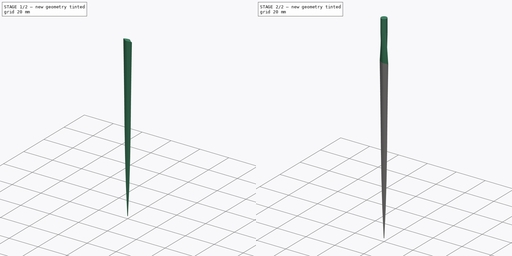
[diagram: build sequence overview — one tinted view per stage of 2, left to right]
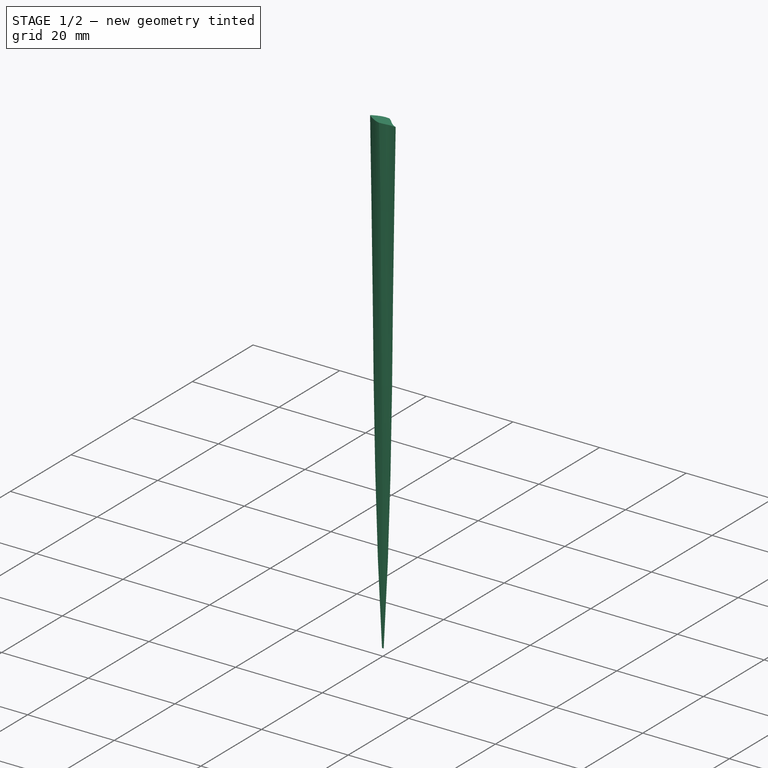
[diagram: stage 1 of 2 — iso view after this stage's code; geometry added in this stage tinted green]
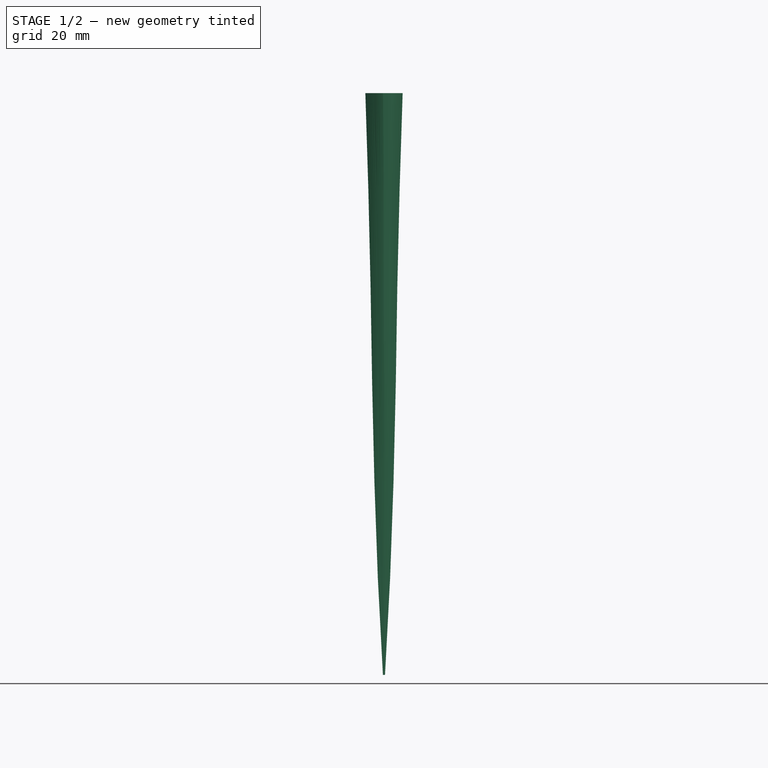
[diagram: stage 1 of 2 — front view after this stage's code; geometry added in this stage tinted green]
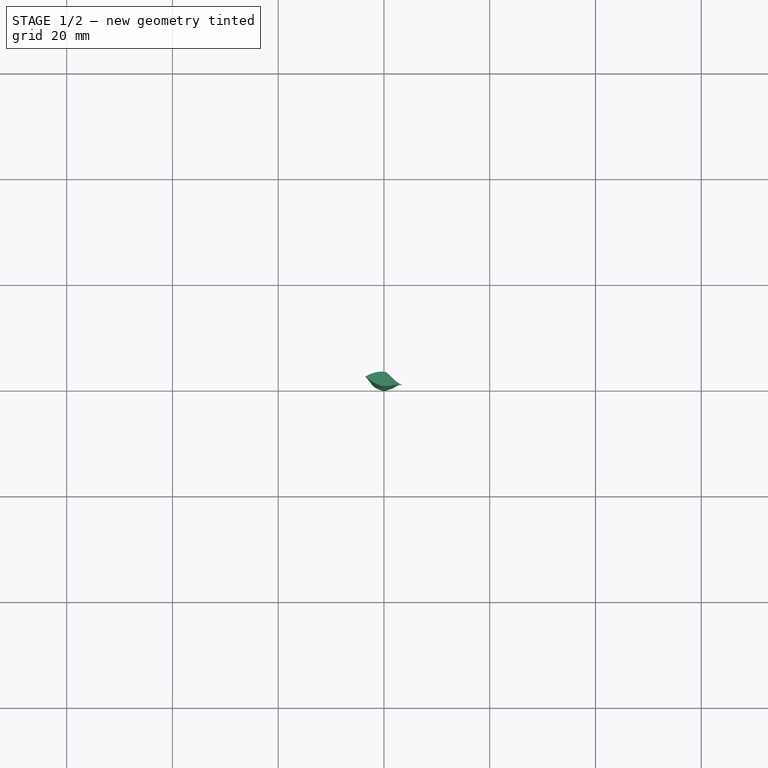
[diagram: stage 1 of 2 — top view after this stage's code; geometry added in this stage tinted green]
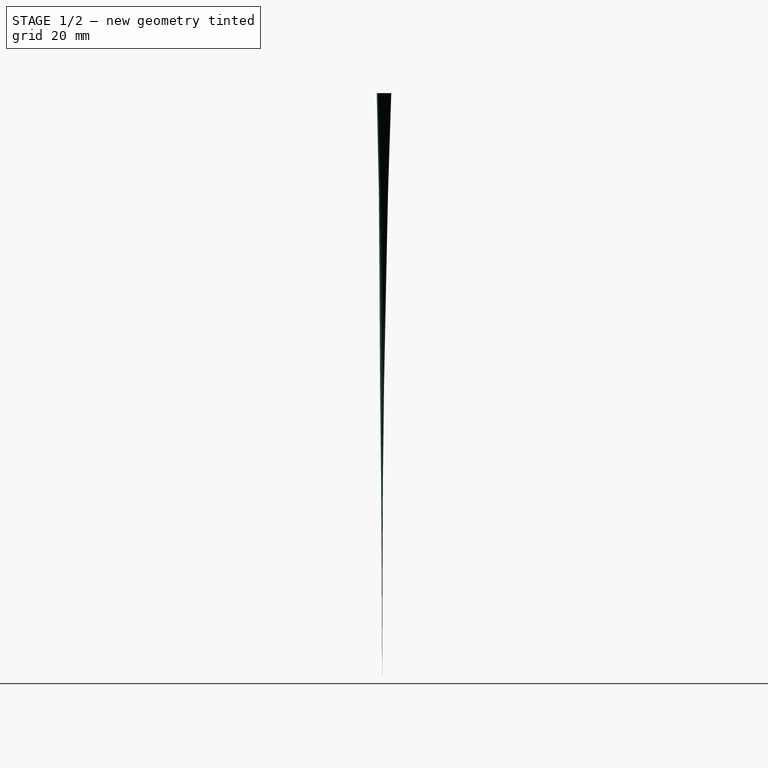
[diagram: stage 1 of 2 — right view after this stage's code; geometry added in this stage tinted green]
FCSTD DOCUMENT  (FreeCAD 1.0R39109 (Git))
Label: FinalBlade
License: All rights reserved
LicenseURL: https://en.wikipedia.org/wiki/All_rights_reserved
objects: Sketcher::SketchObject×9, Image::ImagePlane×6, PartDesign::AdditiveLoft×2, PartDesign::Body×1
note: 25 computed .brp shape members not serialized (recipe doc carries the construction recipe); baked Part::Feature solids carry a one-line shape summary decoded from their .brp

FEATURE [Image::ImagePlane] section1
  XSize = 7.251
  YSize = 3.62
FEATURE [Image::ImagePlane] section2
  XSize = 6
  YSize = 2.98
FEATURE [Image::ImagePlane] section3
  XSize = 5.12
  YSize = 2.54
FEATURE [Image::ImagePlane] section4
  XSize = 4.5
  YSize = 2.23
FEATURE [Image::ImagePlane] section5
  XSize = 3.65
  YSize = 1.81
FEATURE [Image::ImagePlane] section6
  XSize = 0.4
  YSize = 0.2
FEATURE [Sketcher::SketchObject] Sketch
  ArcFitTolerance = 1e-06
  AttachmentOffset = pos=(0,0,110) rot=(0,0,1;-0.226893rad)
  AttachmentSupport = -> [XY_Plane]
  FullyConstrained = false
  MakeInternals = false
  MapMode = 5
  Placement = pos=(0,0,110) rot=(0,0,1;6.05629rad)
  sketch-geometry (8):
    g0: ArcOfCircle CenterX=1.04236 CenterY=-4.73793 CenterZ=0 NormalX=0 NormalY=0 NormalZ=1 AngleXU=0 Radius=6.64006 StartAngle=2.05375 EndAngle=2.34706
    g1: ArcOfCircle CenterX=0.145232 CenterY=-2.77345 CenterZ=0 NormalX=0 NormalY=0 NormalZ=1 AngleXU=0 Radius=4.48519 StartAngle=1.60318 EndAngle=2.08001
    g2: ArcOfCircle CenterX=-4.35574 CenterY=-7.79645 CenterZ=0 NormalX=0 NormalY=0 NormalZ=1 AngleXU=0 Radius=10.4563 StartAngle=0.978651 EndAngle=1.14113
    g3: ArcOfCircle CenterX=4.59754 CenterY=5.42648 CenterZ=0 NormalX=0 NormalY=0 NormalZ=1 AngleXU=0 Radius=5.51282 StartAngle=4.11141 EndAngle=4.53517
    g4: ArcOfCircle CenterX=4.35382 CenterY=-7.04023 CenterZ=0 NormalX=0 NormalY=0 NormalZ=1 AngleXU=0 Radius=7.07778 StartAngle=1.67386 EndAngle=1.98729
    g5: ArcOfCircle CenterX=-5.33803 CenterY=18.2885 CenterZ=0 NormalX=0 NormalY=0 NormalZ=1 AngleXU=0 Radius=20.0544 StartAngle=4.98468 EndAngle=5.05984
    g6: ArcOfCircle CenterX=0.072949 CenterY=4.94074 CenterZ=0 NormalX=0 NormalY=0 NormalZ=1 AngleXU=0 Radius=5.96777 StartAngle=4.43038 EndAngle=4.70944
    g7: ArcOfCircle CenterX=0.286366 CenterY=6.97679 CenterZ=0 NormalX=0 NormalY=0 NormalZ=1 AngleXU=0 Radius=7.99097 StartAngle=4.20309 EndAngle=4.47565
  constraints (11):
    c: PointOnObject(g0,g-1)
    c: Coincident(g1,g0)
    c: PointOnObject(g1,g-2)
    c: Coincident(g2,g1)
    c: Coincident(g3,g2)
    c: PointOnObject(g3,g-1)
    c: Coincident(g4,g3)
    c: Coincident(g5,g4)
    c: Coincident(g6,g5)
    c: Coincident(g7,g6)
    c: Coincident(g7,g0)
FEATURE [Sketcher::SketchObject] Sketch001
  ArcFitTolerance = 1e-06
  AttachmentOffset = pos=(0,0,91.66) rot=(0,0,1;-0.15708rad)
  AttachmentSupport = -> [XY_Plane]
  FullyConstrained = false
  MakeInternals = false
  MapMode = 5
  Placement = pos=(0,0,91.66) rot=(0,0,1;6.12611rad)
  sketch-geometry (8):
    g0: ArcOfCircle CenterX=0.698225 CenterY=-5.09208 CenterZ=0 NormalX=0 NormalY=0 NormalZ=1 AngleXU=0 Radius=6.28512 StartAngle=1.88093 EndAngle=2.19713
    g1: ArcOfCircle CenterX=0.345712 CenterY=-3.68993 CenterZ=0 NormalX=0 NormalY=0 NormalZ=1 AngleXU=0 Radius=4.84316 StartAngle=1.63475 EndAngle=1.89998
    g2: ArcOfCircle CenterX=-3.52203 CenterY=-8.80357 CenterZ=0 NormalX=0 NormalY=0 NormalZ=1 AngleXU=0 Radius=10.5642 StartAngle=1.10281 EndAngle=1.22726
    g3: ArcOfCircle CenterX=3.77448 CenterY=4.94946 CenterZ=0 NormalX=0 NormalY=0 NormalZ=1 AngleXU=0 Radius=5.01099 StartAngle=4.18287 EndAngle=4.55553
    g4: ArcOfCircle CenterX=4.16122 CenterY=-10.973 CenterZ=0 NormalX=0 NormalY=0 NormalZ=1 AngleXU=0 Radius=11.0351 StartAngle=1.67698 EndAngle=1.84239
    g5: ArcOfCircle CenterX=-9.14061 CenterY=39.9487 CenterZ=0 NormalX=0 NormalY=0 NormalZ=1 AngleXU=0 Radius=41.597 StartAngle=4.93506 EndAngle=4.96363
    g6: ArcOfCircle CenterX=0.154865 CenterY=7.20944 CenterZ=0 NormalX=0 NormalY=0 NormalZ=1 AngleXU=0 Radius=7.83159 StartAngle=4.53278 EndAngle=4.69841
    g7: ArcOfCircle CenterX=-0.027356 CenterY=7.08089 CenterZ=0 NormalX=0 NormalY=0 NormalZ=1 AngleXU=0 Radius=7.67415 StartAngle=4.3166 EndAngle=4.55315
  constraints (10):
    c: PointOnObject(g0,g-1)
    c: Coincident(g1,g0)
    c: Coincident(g2,g1)
    c: Coincident(g3,g2)
    c: PointOnObject(g3,g-1)
    c: Coincident(g4,g3)
    c: Coincident(g5,g4)
    c: Coincident(g6,g5)
    c: Coincident(g7,g6)
    c: Coincident(g7,g0)
FEATURE [Sketcher::SketchObject] Sketch002
  ArcFitTolerance = 1e-06
  AttachmentOffset = pos=(0,0,73.33) rot=(0,0,1;-0.10472rad)
  AttachmentSupport = -> [XY_Plane]
  FullyConstrained = false
  MakeInternals = false
  MapMode = 5
  Placement = pos=(0,0,73.33) rot=(0,0,1;6.17847rad)
  sketch-geometry (8):
    g0: ArcOfCircle CenterX=-0.280088 CenterY=-3.42777 CenterZ=0 NormalX=0 NormalY=0 NormalZ=1 AngleXU=0 Radius=4.11025 StartAngle=1.75191 EndAngle=2.15535
    g1: ArcOfCircle CenterX=0.100305 CenterY=-4.39797 CenterZ=0 NormalX=0 NormalY=0 NormalZ=1 AngleXU=0 Radius=5.13696 StartAngle=1.59032 EndAngle=1.79074
    g2: ArcOfCircle CenterX=-2.42042 CenterY=-7.85394 CenterZ=0 NormalX=0 NormalY=0 NormalZ=1 AngleXU=0 Radius=8.92637 StartAngle=1.16614 EndAngle=1.29621
    g3: ArcOfCircle CenterX=2.91391 CenterY=4.68392 CenterZ=0 NormalX=0 NormalY=0 NormalZ=1 AngleXU=0 Radius=4.69915 StartAngle=4.31468 EndAngle=4.63185
    g4: ArcOfCircle CenterX=3.13738 CenterY=-7.59026 CenterZ=0 NormalX=0 NormalY=0 NormalZ=1 AngleXU=0 Radius=7.61406 StartAngle=1.64988 EndAngle=1.85913
    g5: ArcOfCircle CenterX=-4.099 CenterY=22.2051 CenterZ=0 NormalX=0 NormalY=0 NormalZ=1 AngleXU=0 Radius=23.0602 StartAngle=4.89109 EndAngle=4.93412
    g6: ArcOfCircle CenterX=0.008792 CenterY=4.66101 CenterZ=0 NormalX=0 NormalY=0 NormalZ=1 AngleXU=0 Radius=5.14884 StartAngle=4.50026 EndAngle=4.71068
    g7: ArcOfCircle CenterX=0.419355 CenterY=8.63816 CenterZ=0 NormalX=0 NormalY=0 NormalZ=1 AngleXU=0 Radius=9.1337 StartAngle=4.38148 EndAngle=4.54801
  constraints (12):
    c: PointOnObject(g0,g-1)
    c: Coincident(g1,g0)
    c: PointOnObject(g1,g-2)
    c: Coincident(g2,g1)
    c: Coincident(g3,g2)
    c: PointOnObject(g3,g-1)
    c: Coincident(g4,g3)
    c: Coincident(g5,g4)
    c: PointOnObject(g5,g-2)
    c: Coincident(g6,g5)
    c: Coincident(g7,g6)
    c: Coincident(g7,g0)
FEATURE [Sketcher::SketchObject] Sketch003
  ArcFitTolerance = 1e-06
  AttachmentOffset = pos=(0,0,55) rot=(0,0,1;-0.069813rad)
  AttachmentSupport = -> [XY_Plane]
  FullyConstrained = false
  MakeInternals = false
  MapMode = 5
  Placement = pos=(0,0,55) rot=(0,0,1;6.21337rad)
  sketch-geometry (8):
    g0: ArcOfCircle CenterX=0.197701 CenterY=-7.75747 CenterZ=0 NormalX=0 NormalY=0 NormalZ=1 AngleXU=0 Radius=8.13131 StartAngle=1.70866 EndAngle=1.87521
    g1: ArcOfCircle CenterX=-0.167782 CenterY=-4.02517 CenterZ=0 NormalX=0 NormalY=0 NormalZ=1 AngleXU=0 Radius=4.3868 StartAngle=1.52172 EndAngle=1.74306
    g2: ArcOfCircle CenterX=3.42293 CenterY=15.1574 CenterZ=0 NormalX=0 NormalY=0 NormalZ=1 AngleXU=0 Radius=15.1811 StartAngle=4.48816 EndAngle=4.55069
    g3: ArcOfCircle CenterX=2.28125 CenterY=4.94764 CenterZ=0 NormalX=0 NormalY=0 NormalZ=1 AngleXU=0 Radius=4.94779 StartAngle=4.44601 EndAngle=4.70463
    g4: ArcOfCircle CenterX=8.38893 CenterY=-36.2338 CenterZ=0 NormalX=0 NormalY=0 NormalZ=1 AngleXU=0 Radius=36.7513 StartAngle=1.73882 EndAngle=1.77533
    g5: ArcOfCircle CenterX=-0.72118 CenterY=7.43851 CenterZ=0 NormalX=0 NormalY=0 NormalZ=1 AngleXU=0 Radius=7.86116 StartAngle=4.81128 EndAngle=4.92326
    g6: ArcOfCircle CenterX=0.18866 CenterY=5.64061 CenterZ=0 NormalX=0 NormalY=0 NormalZ=1 AngleXU=0 Radius=6.02633 StartAngle=4.52347 EndAngle=4.6902
    g7: ArcOfCircle CenterX=-0.247915 CenterY=6.11406 CenterZ=0 NormalX=0 NormalY=0 NormalZ=1 AngleXU=0 Radius=6.43026 StartAngle=4.39749 EndAngle=4.60407
  constraints (10):
    c: PointOnObject(g0,g-1)
    c: Coincident(g1,g0)
    c: Coincident(g2,g1)
    c: Coincident(g3,g2)
    c: PointOnObject(g3,g-1)
    c: Coincident(g4,g3)
    c: Coincident(g5,g4)
    c: Coincident(g6,g5)
    c: Coincident(g7,g6)
    c: Coincident(g7,g0)
FEATURE [Sketcher::SketchObject] Sketch004
  ArcFitTolerance = 1e-06
  AttachmentOffset = pos=(0,0,36.66) rot=(0,0,1;-0.03927rad)
  AttachmentSupport = -> [XY_Plane]
  FullyConstrained = false
  MakeInternals = false
  MapMode = 5
  Placement = pos=(0,0,36.66) rot=(0,0,1;6.24392rad)
  sketch-geometry (8):
    g0: ArcOfCircle CenterX=-0.172336 CenterY=-10.5164 CenterZ=0 NormalX=0 NormalY=0 NormalZ=1 AngleXU=0 Radius=10.6439 StartAngle=1.61748 EndAngle=1.72573
    g1: ArcOfCircle CenterX=-0.271147 CenterY=-2.9849 CenterZ=0 NormalX=0 NormalY=0 NormalZ=1 AngleXU=0 Radius=3.12623 StartAngle=1.48395 EndAngle=1.69841
    g2: ArcOfCircle CenterX=-1.53126 CenterY=-25.4746 CenterZ=0 NormalX=0 NormalY=0 NormalZ=1 AngleXU=0 Radius=25.6499 StartAngle=1.47951 EndAngle=1.51106
    g3: ArcOfCircle CenterX=1.75576 CenterY=6.57979 CenterZ=0 NormalX=0 NormalY=0 NormalZ=1 AngleXU=0 Radius=6.58006 StartAngle=4.56771 EndAngle=4.72136
    g4: ArcOfCircle CenterX=2.71405 CenterY=-13.4932 CenterZ=0 NormalX=0 NormalY=0 NormalZ=1 AngleXU=0 Radius=13.5231 StartAngle=1.63734 EndAngle=1.71677
    g5: ArcOfCircle CenterX=2.68281 CenterY=-21.9541 CenterZ=0 NormalX=0 NormalY=0 NormalZ=1 AngleXU=0 Radius=21.9259 StartAngle=1.6592 EndAngle=1.69059
    g6: ArcOfCircle CenterX=0.020548 CenterY=8.35554 CenterZ=0 NormalX=0 NormalY=0 NormalZ=1 AngleXU=0 Radius=8.54105 StartAngle=4.61625 EndAngle=4.7173
    g7: ArcOfCircle CenterX=-0.387357 CenterY=6.32145 CenterZ=0 NormalX=0 NormalY=0 NormalZ=1 AngleXU=0 Radius=6.48063 StartAngle=4.49029 EndAngle=4.64878
  constraints (11):
    c: PointOnObject(g0,g-1)
    c: Coincident(g1,g0)
    c: PointOnObject(g1,g-2)
    c: Coincident(g2,g1)
    c: Coincident(g3,g2)
    c: PointOnObject(g3,g-1)
    c: Coincident(g4,g3)
    c: Coincident(g5,g4)
    c: Coincident(g6,g5)
    c: Coincident(g7,g6)
    c: Coincident(g7,g0)
FEATURE [Sketcher::SketchObject] Sketch005
  ArcFitTolerance = 1e-06
  AttachmentOffset = pos=(0,0,18.33) rot=(0,0,1;-0.017453rad)
  AttachmentSupport = -> [XY_Plane]
  FullyConstrained = false
  MakeInternals = false
  MapMode = 5
  Placement = pos=(0,0,18.33) rot=(0,0,1;6.26573rad)
  sketch-geometry (8):
    g0: ArcOfCircle CenterX=-0.399999 CenterY=-3.90035 CenterZ=0 NormalX=0 NormalY=0 NormalZ=1 AngleXU=0 Radius=3.97411 StartAngle=1.58989 EndAngle=1.76377
    g1: ArcOfCircle CenterX=-0.238327 CenterY=-2.69541 CenterZ=0 NormalX=0 NormalY=0 NormalZ=1 AngleXU=0 Radius=2.77862 StartAngle=1.48492 EndAngle=1.65639
    g2: ArcOfCircle CenterX=-0.286313 CenterY=-6.75309 CenterZ=0 NormalX=0 NormalY=0 NormalZ=1 AngleXU=0 Radius=6.83207 StartAngle=1.45894 EndAngle=1.52888
    g3: ArcOfCircle CenterX=3.5362 CenterY=51.6377 CenterZ=0 NormalX=0 NormalY=0 NormalZ=1 AngleXU=0 Radius=51.6921 StartAngle=4.65316 EndAngle=4.66652
    g4: ArcOfCircle CenterX=1.28065 CenterY=-13.3941 CenterZ=0 NormalX=0 NormalY=0 NormalZ=1 AngleXU=0 Radius=13.3946 StartAngle=1.57935 EndAngle=1.63381
    g5: ArcOfCircle CenterX=-0.220156 CenterY=7.08408 CenterZ=0 NormalX=0 NormalY=0 NormalZ=1 AngleXU=0 Radius=7.14049 StartAngle=4.74827 EndAngle=4.80457
    g6: ArcOfCircle CenterX=-0.161129 CenterY=4.46396 CenterZ=0 NormalX=0 NormalY=0 NormalZ=1 AngleXU=0 Radius=4.52007 StartAngle=4.63751 EndAngle=4.75602
    g7: ArcOfCircle CenterX=-0.380019 CenterY=6.85353 CenterZ=0 NormalX=0 NormalY=0 NormalZ=1 AngleXU=0 Radius=6.89802 StartAngle=4.59876 EndAngle=4.6951
  constraints (11):
    c: PointOnObject(g0,g-1)
    c: Coincident(g1,g0)
    c: PointOnObject(g1,g-2)
    c: Coincident(g2,g1)
    c: Coincident(g3,g2)
    c: PointOnObject(g3,g-1)
    c: Coincident(g4,g3)
    c: Coincident(g5,g4)
    c: Coincident(g6,g5)
    c: Coincident(g7,g6)
    c: Coincident(g7,g0)
FEATURE [Sketcher::SketchObject] Sketch006
  ArcFitTolerance = 1e-06
  AttachmentOffset = pos=(0,0,0) rot=(0,0,1;-0.003491rad)
  AttachmentSupport = -> [XY_Plane]
  FullyConstrained = false
  MakeInternals = false
  MapMode = 5
  Placement = pos=(0,0,0) rot=(0,0,1;6.2797rad)
  sketch-geometry (8):
    g0: ArcOfCircle CenterX=-0.048724 CenterY=-0.837866 CenterZ=0 NormalX=0 NormalY=0 NormalZ=1 AngleXU=0 Radius=0.85101 StartAngle=1.60021 EndAngle=1.74678
    g1: ArcOfCircle CenterX=-0.030767 CenterY=-1.07983 CenterZ=0 NormalX=0 NormalY=0 NormalZ=1 AngleXU=0 Radius=1.09345 StartAngle=1.54266 EndAngle=1.61012
    g2: ArcOfCircle CenterX=-0.378108 CenterY=-5.46805 CenterZ=0 NormalX=0 NormalY=0 NormalZ=1 AngleXU=0 Radius=5.49426 StartAngle=1.48908 EndAngle=1.50192
    g3: ArcOfCircle CenterX=0.189623 CenterY=0.901613 CenterZ=0 NormalX=0 NormalY=0 NormalZ=1 AngleXU=0 Radius=0.901656 StartAngle=4.57971 EndAngle=4.72217
    g4: ArcOfCircle CenterX=0.187429 CenterY=-1.20768 CenterZ=0 NormalX=0 NormalY=0 NormalZ=1 AngleXU=0 Radius=1.20774 StartAngle=1.56168 EndAngle=1.69255
    g5: ArcOfCircle CenterX=0.135457 CenterY=-3.10618 CenterZ=0 NormalX=0 NormalY=0 NormalZ=1 AngleXU=0 Radius=3.09874 StartAngle=1.60137 EndAngle=1.61452
    g6: ArcOfCircle CenterX=-0.072447 CenterY=-1.15629 CenterZ=0 NormalX=0 NormalY=0 NormalZ=1 AngleXU=0 Radius=1.14818 StartAngle=1.50766 EndAngle=1.5773
    g7: ArcOfCircle CenterX=-0.037153 CenterY=1.46689 CenterZ=0 NormalX=0 NormalY=0 NormalZ=1 AngleXU=0 Radius=1.47565 StartAngle=4.60337 EndAngle=4.68341
  constraints (12):
    c: PointOnObject(g0,g-1)
    c: Coincident(g1,g0)
    c: PointOnObject(g1,g-2)
    c: Coincident(g2,g1)
    c: Coincident(g3,g2)
    c: PointOnObject(g3,g-1)
    c: Coincident(g4,g3)
    c: Coincident(g5,g4)
    c: PointOnObject(g5,g-2)
    c: Coincident(g6,g5)
    c: Coincident(g7,g6)
    c: Coincident(g7,g0)
FEATURE [Sketcher::SketchObject] Sketch007
  ArcFitTolerance = 1e-06
  AttachmentOffset = pos=(0,0,129) rot=(0,0,1;0rad)
  AttachmentSupport = -> [XY_Plane]
  FullyConstrained = true
  MakeInternals = false
  MapMode = 5
  Placement = pos=(0,0,129) rot=(0,0,1;0rad)
  sketch-geometry (1):
    g0: Circle CenterX=0 CenterY=0 CenterZ=0 NormalX=0 NormalY=0 NormalZ=1 AngleXU=0 Radius=2
  constraints (2):
    c: Diameter(g0) = 4
    c: Coincident(g0,g-1)
FEATURE [Sketcher::SketchObject] Sketch008
  ArcFitTolerance = 1e-06
  AttachmentOffset = pos=(0,0,138) rot=(0,0,1;0rad)
  AttachmentSupport = -> [XY_Plane]
  FullyConstrained = true
  MakeInternals = false
  MapMode = 5
  Placement = pos=(0,0,138) rot=(0,0,1;0rad)
  sketch-geometry (1):
    g0: Circle CenterX=0 CenterY=0 CenterZ=0 NormalX=0 NormalY=0 NormalZ=1 AngleXU=0 Radius=2
  constraints (2):
    c: Diameter(g0) = 4
    c: Coincident(g0,g-1)
FEATURE [PartDesign::AdditiveLoft] AdditiveLoft
  Closed = false
  Profile = -> Sketch006
  Refine = true
  Ruled = true
  Sections = -> [Sketch005,Sketch004,Sketch003,Sketch002,Sketch001,Sketch]
  Suppressed = false
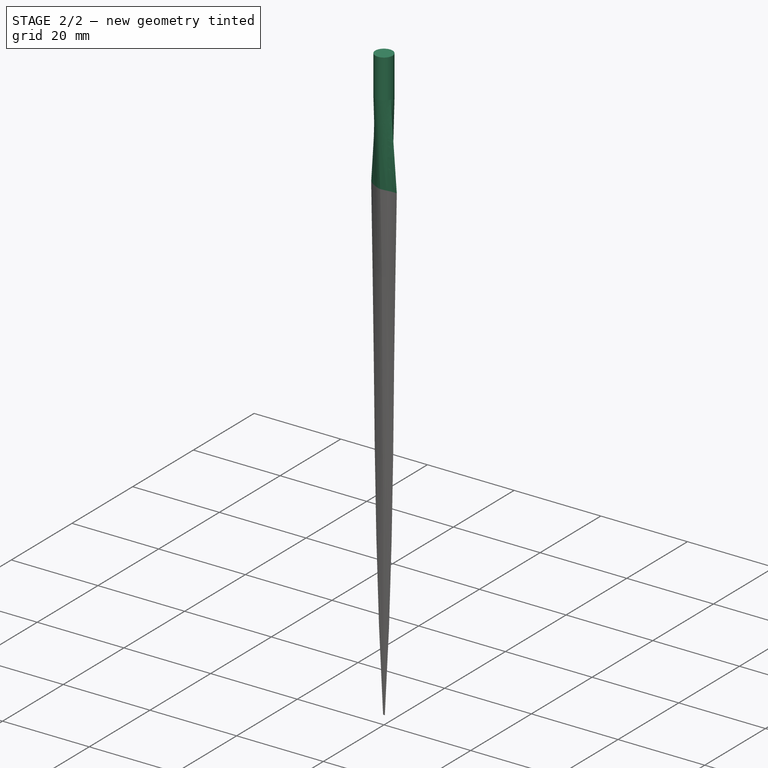
[diagram: stage 2 of 2 — iso view after this stage's code; geometry added in this stage tinted green]
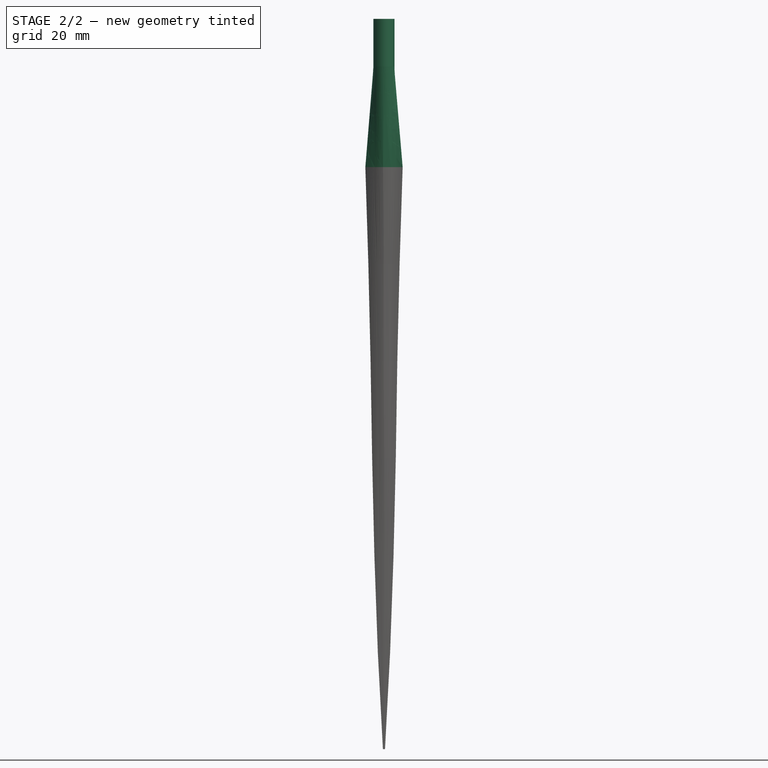
[diagram: stage 2 of 2 — front view after this stage's code; geometry added in this stage tinted green]
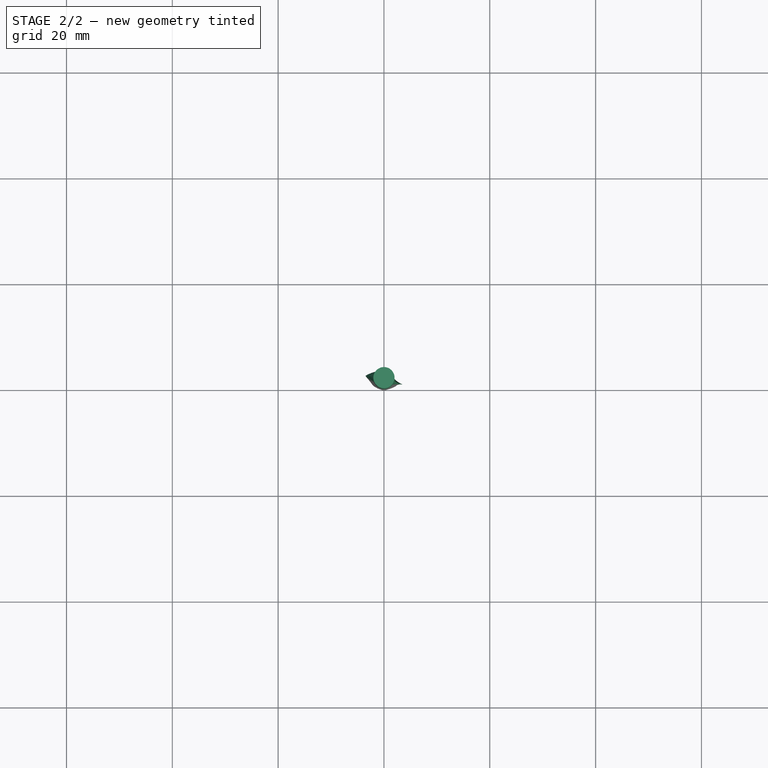
[diagram: stage 2 of 2 — top view after this stage's code; geometry added in this stage tinted green]
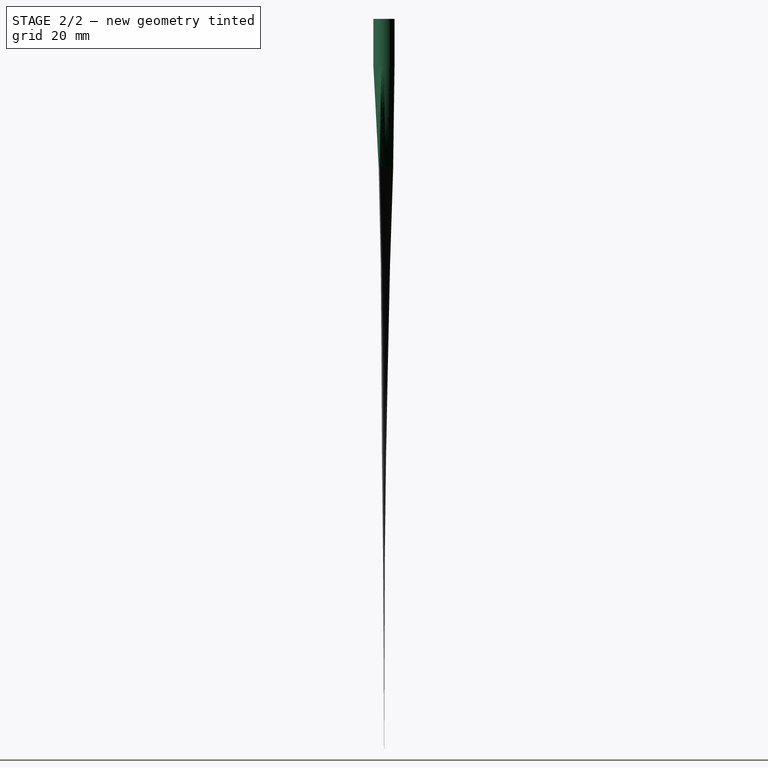
[diagram: stage 2 of 2 — right view after this stage's code; geometry added in this stage tinted green]
FEATURE [PartDesign::AdditiveLoft] AdditiveLoft001
  BaseFeature = -> AdditiveLoft
  Closed = false
  Profile = -> Sketch
  Refine = true
  Ruled = true
  Sections = -> [Sketch007,Sketch008]
  Suppressed = false
FEATURE [PartDesign::Body] Body
  AllowCompound = false
  Group = -> [Sketch,Sketch001,Sketch002,Sketch003,Sketch004,Sketch005,Sketch006,Sketch007,Sketch008,AdditiveLoft,AdditiveLoft001]
  Origin = -> Origin
  Tip = -> AdditiveLoft001
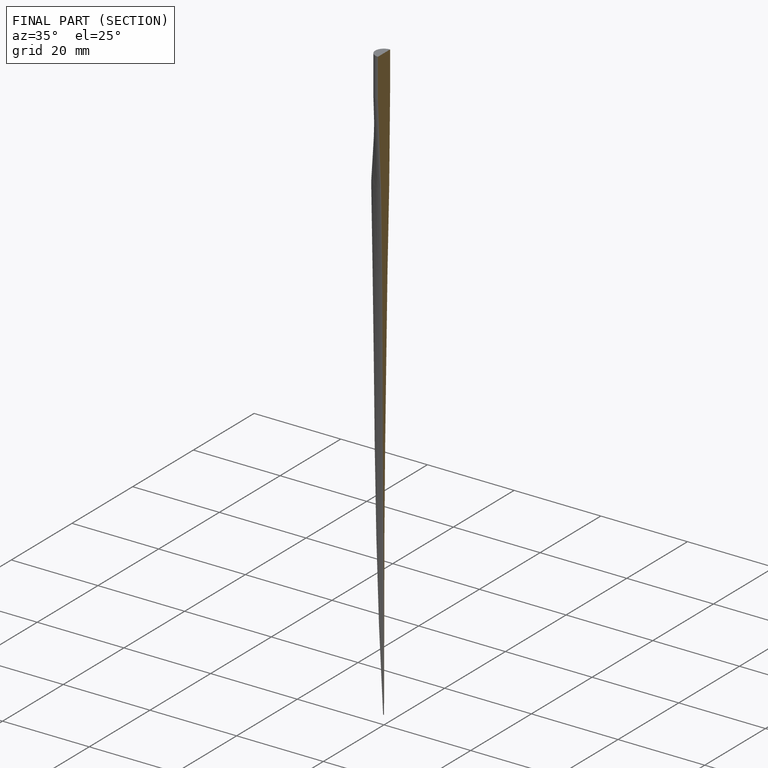
[diagram: finished part — half-section view (interior)]
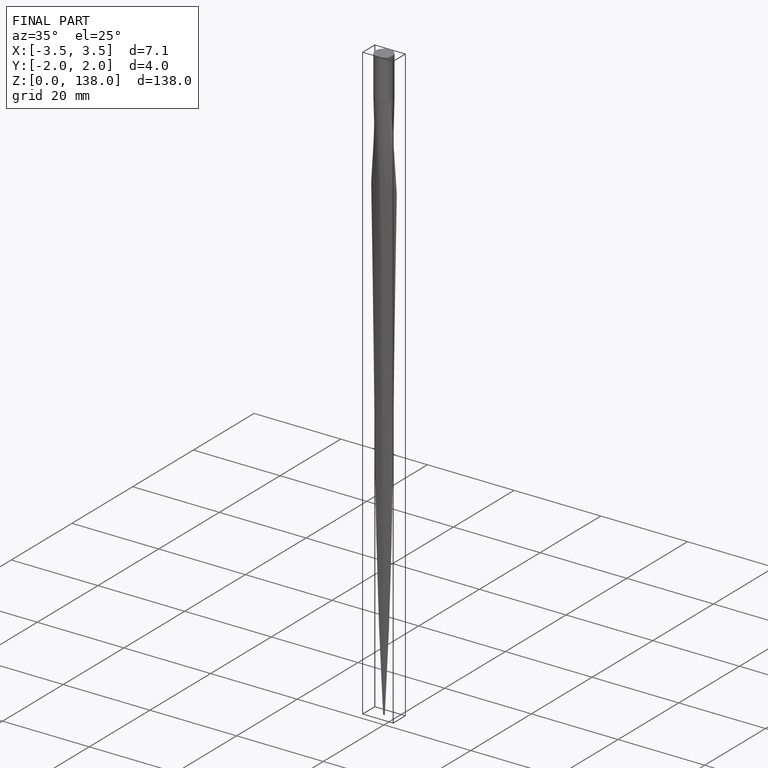
[diagram: finished part — iso view with bounding-box wireframe]
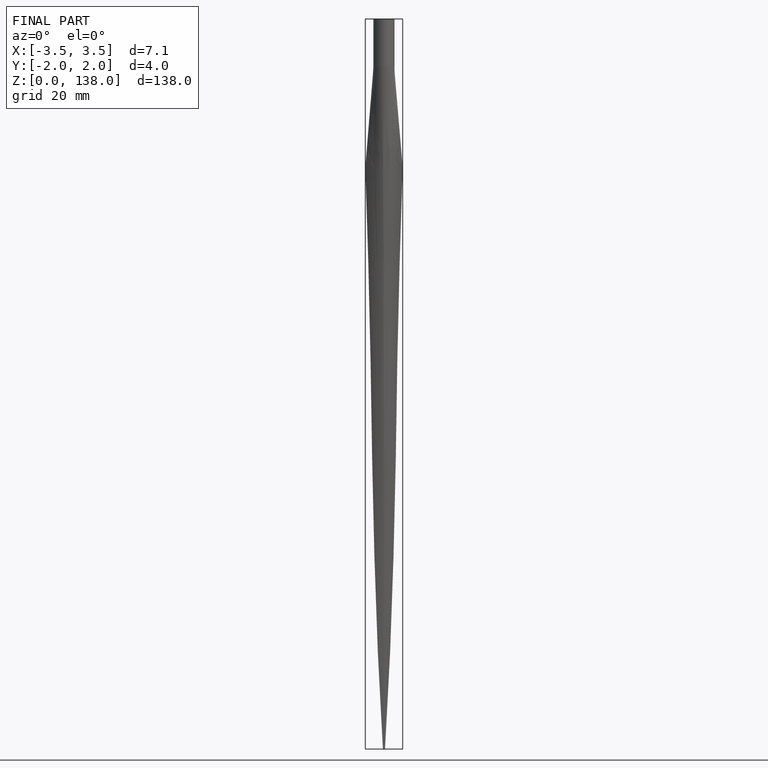
[diagram: finished part — front view with bounding-box wireframe]
